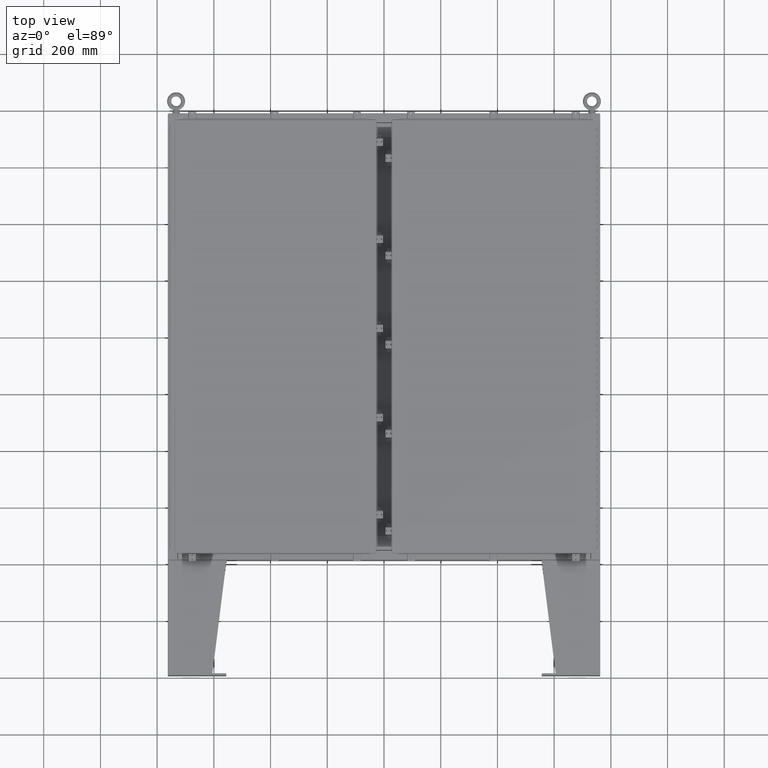
[diagram: clean part render]
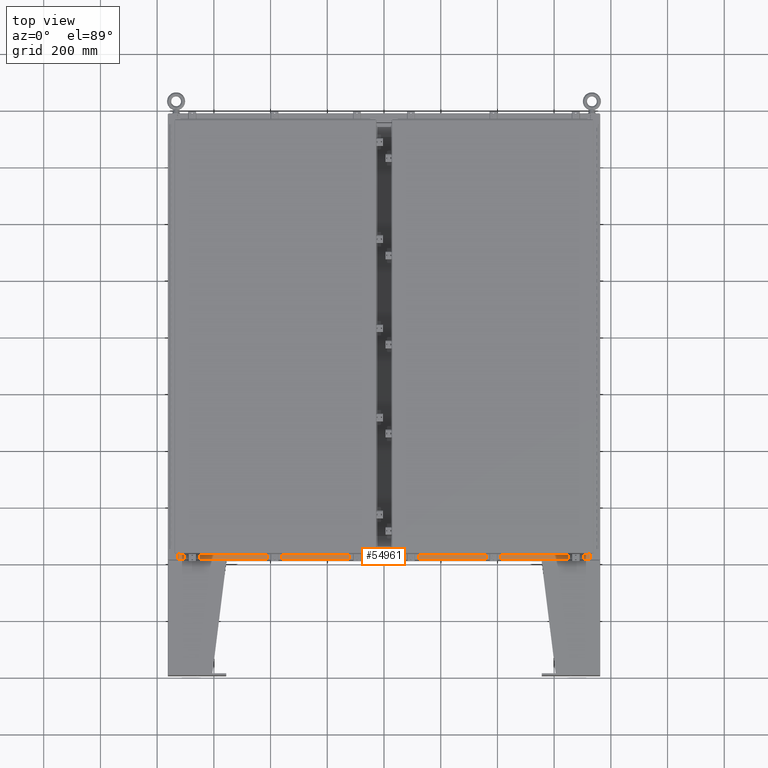
[diagram: same view with one face highlighted and labeled with its STEP entity id]
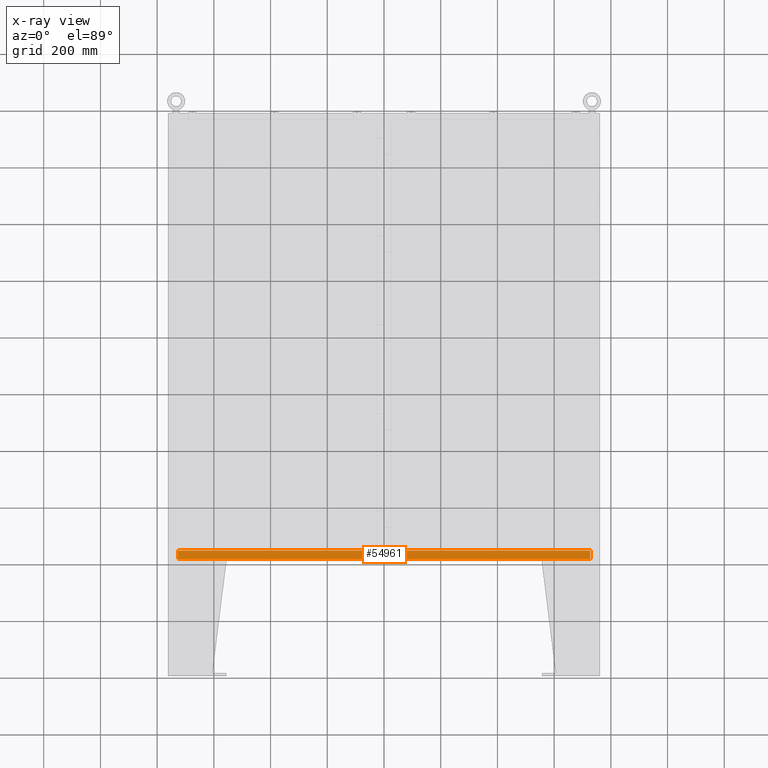
[diagram: x-ray of the same camera — body ghosted, the highlighted face saturated]
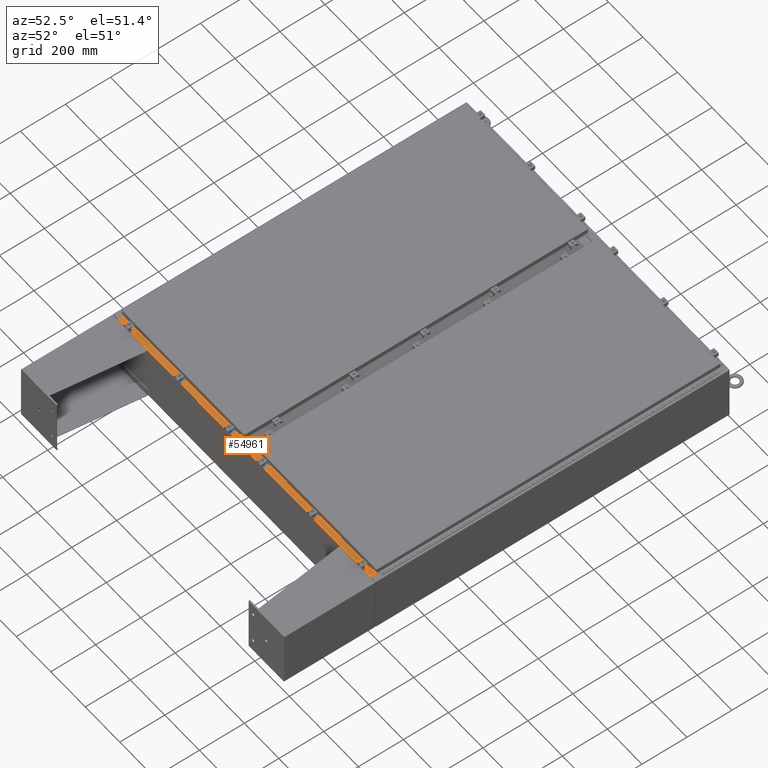
[diagram: same view with one face highlighted and labeled with its STEP entity id]
A machine part, top view. The second image highlights one B-rep face of the part: STEP entity #54961.
The next image is the same camera in x-ray: the body ghosted, the highlighted face saturated — about 0% of this face is hidden behind the body in this view.
A second angle (auxiliary view) of the same face is appended — the face is thin or edge-on in the first view.
In plain terms, the highlighted planar face has unit normal (0, -0, 1).
Its self-contained STEP definition (entity closure, byte-faithful):
#1573 = LINE ( 'NONE', #9800, #42777 ) ;
#1947 = CARTESIAN_POINT ( 'NONE',  ( 28.63720000000000000, -0.08770000000000136000, 4.999999999999997300 ) ) ;
#3740 = CARTESIAN_POINT ( 'NONE',  ( -1.673229708521810300E-018, -0.08770000000000136000, 4.999999999999997300 ) ) ;
#4183 = VECTOR ( 'NONE', #62744, 39.37007874015748100 ) ;
#4937 = VERTEX_POINT ( 'NONE', #1947 ) ;
#5916 = EDGE_CURVE ( 'NONE', #59104, #40946, #22960, .T. ) ;
#6243 = DIRECTION ( 'NONE',  ( 0.0000000000000000000, 1.000000000000000000, -3.566381192773190000E-015 ) ) ;
#7597 = CARTESIAN_POINT ( 'NONE',  ( -1.750000000000000700, -1.287299999999991500, 4.999999999999992900 ) ) ;
#8054 = DIRECTION ( 'NONE',  ( -1.000000000000000000, 0.0000000000000000000, 0.0000000000000000000 ) ) ;
#9275 = VERTEX_POINT ( 'NONE', #64727 ) ;
#9800 = CARTESIAN_POINT ( 'NONE',  ( 28.63720000000000000, -1.287299999999995900, 4.999999999999988500 ) ) ;
#11407 = VECTOR ( 'NONE', #6243, 39.37007874015748100 ) ;
#11436 = DIRECTION ( 'NONE',  ( -1.000000000000000000, 0.0000000000000000000, 0.0000000000000000000 ) ) ;
#18482 = ORIENTED_EDGE ( 'NONE', *, *, #69354, .F. ) ;
#20355 = DIRECTION ( 'NONE',  ( 0.0000000000000000000, -1.000000000000000000, 3.566381192773190000E-015 ) ) ;
#21458 = EDGE_CURVE ( 'NONE', #40946, #61096, #1573, .T. ) ;
#21619 = VECTOR ( 'NONE', #8054, 39.37007874015748100 ) ;
#22213 = LINE ( 'NONE', #68861, #44065 ) ;
#22960 = LINE ( 'NONE', #65059, #33907 ) ;
#23285 = LINE ( 'NONE', #24022, #21619 ) ;
#24022 = CARTESIAN_POINT ( 'NONE',  ( 28.63720000000000000, -1.287299999999995900, 4.999999999999988500 ) ) ;
#26758 = ORIENTED_EDGE ( 'NONE', *, *, #28627, .T. ) ;
#28627 = EDGE_CURVE ( 'NONE', #4937, #9275, #63062, .T. ) ;
#28816 = FACE_OUTER_BOUND ( 'NONE', #55610, .T. ) ;
#33081 = CARTESIAN_POINT ( 'NONE',  ( -28.63719999999999300, -1.287299999999995900, 5.000000000000000900 ) ) ;
#33907 = VECTOR ( 'NONE', #11436, 39.37007874015748100 ) ;
#36337 = CARTESIAN_POINT ( 'NONE',  ( 0.0000000000000000000, 1.639108796198557900E-014, 4.999999999999997300 ) ) ;
#37220 = CARTESIAN_POINT ( 'NONE',  ( 1.749999999999999100, -1.287299999999991500, 4.999999999999992900 ) ) ;
#37710 = AXIS2_PLACEMENT_3D ( 'NONE', #36337, #52580, #20355 ) ;
#40946 = VERTEX_POINT ( 'NONE', #7597 ) ;
#42039 = DIRECTION ( 'NONE',  ( -1.000000000000000000, 0.0000000000000000000, 0.0000000000000000000 ) ) ;
#42056 = DIRECTION ( 'NONE',  ( 0.0000000000000000000, -1.000000000000000000, 3.566381192773190000E-015 ) ) ;
#42777 = VECTOR ( 'NONE', #42039, 39.37007874015748100 ) ;
#44065 = VECTOR ( 'NONE', #42056, 39.37007874015748100 ) ;
#44375 = ORIENTED_EDGE ( 'NONE', *, *, #61653, .F. ) ;
#44829 = EDGE_CURVE ( 'NONE', #48843, #59104, #23285, .T. ) ;
#46901 = PLANE ( 'NONE',  #37710 ) ;
#48843 = VERTEX_POINT ( 'NONE', #66348 ) ;
#52580 = DIRECTION ( 'NONE',  ( 0.0000000000000000000, 3.566381192773190000E-015, 1.000000000000000000 ) ) ;
#54709 = CARTESIAN_POINT ( 'NONE',  ( -28.63719999999999300, -0.07470000000000125200, 4.999999999999997300 ) ) ;
#54961 = ADVANCED_FACE ( 'NONE', ( #28816 ), #46901, .T. ) ;
#55610 = EDGE_LOOP ( 'NONE', ( #44375, #68394, #61080, #63540, #18482, #26758 ) ) ;
#59104 = VERTEX_POINT ( 'NONE', #37220 ) ;
#61080 = ORIENTED_EDGE ( 'NONE', *, *, #5916, .F. ) ;
#61096 = VERTEX_POINT ( 'NONE', #33081 ) ;
#61653 = EDGE_CURVE ( 'NONE', #61096, #9275, #68641, .T. ) ;
#62744 = DIRECTION ( 'NONE',  ( -1.000000000000000000, 1.907901606067817000E-017, -6.804304405542025000E-032 ) ) ;
#63062 = LINE ( 'NONE', #3740, #4183 ) ;
#63540 = ORIENTED_EDGE ( 'NONE', *, *, #44829, .F. ) ;
#64727 = CARTESIAN_POINT ( 'NONE',  ( -28.63719999999999300, -0.08770000000000136000, 4.999999999999997300 ) ) ;
#65059 = CARTESIAN_POINT ( 'NONE',  ( -5.390065748739367200E-019, -1.287299999999991500, 4.999999999999992900 ) ) ;
#66348 = CARTESIAN_POINT ( 'NONE',  ( 28.63719999999999600, -1.287299999999995700, 4.999999999999988500 ) ) ;
#68394 = ORIENTED_EDGE ( 'NONE', *, *, #21458, .F. ) ;
#68641 = LINE ( 'NONE', #54709, #11407 ) ;
#68861 = CARTESIAN_POINT ( 'NONE',  ( 28.63720000000000000, -1.300300000000001300, 5.000000000000000900 ) ) ;
#69354 = EDGE_CURVE ( 'NONE', #4937, #48843, #22213, .T. ) ;